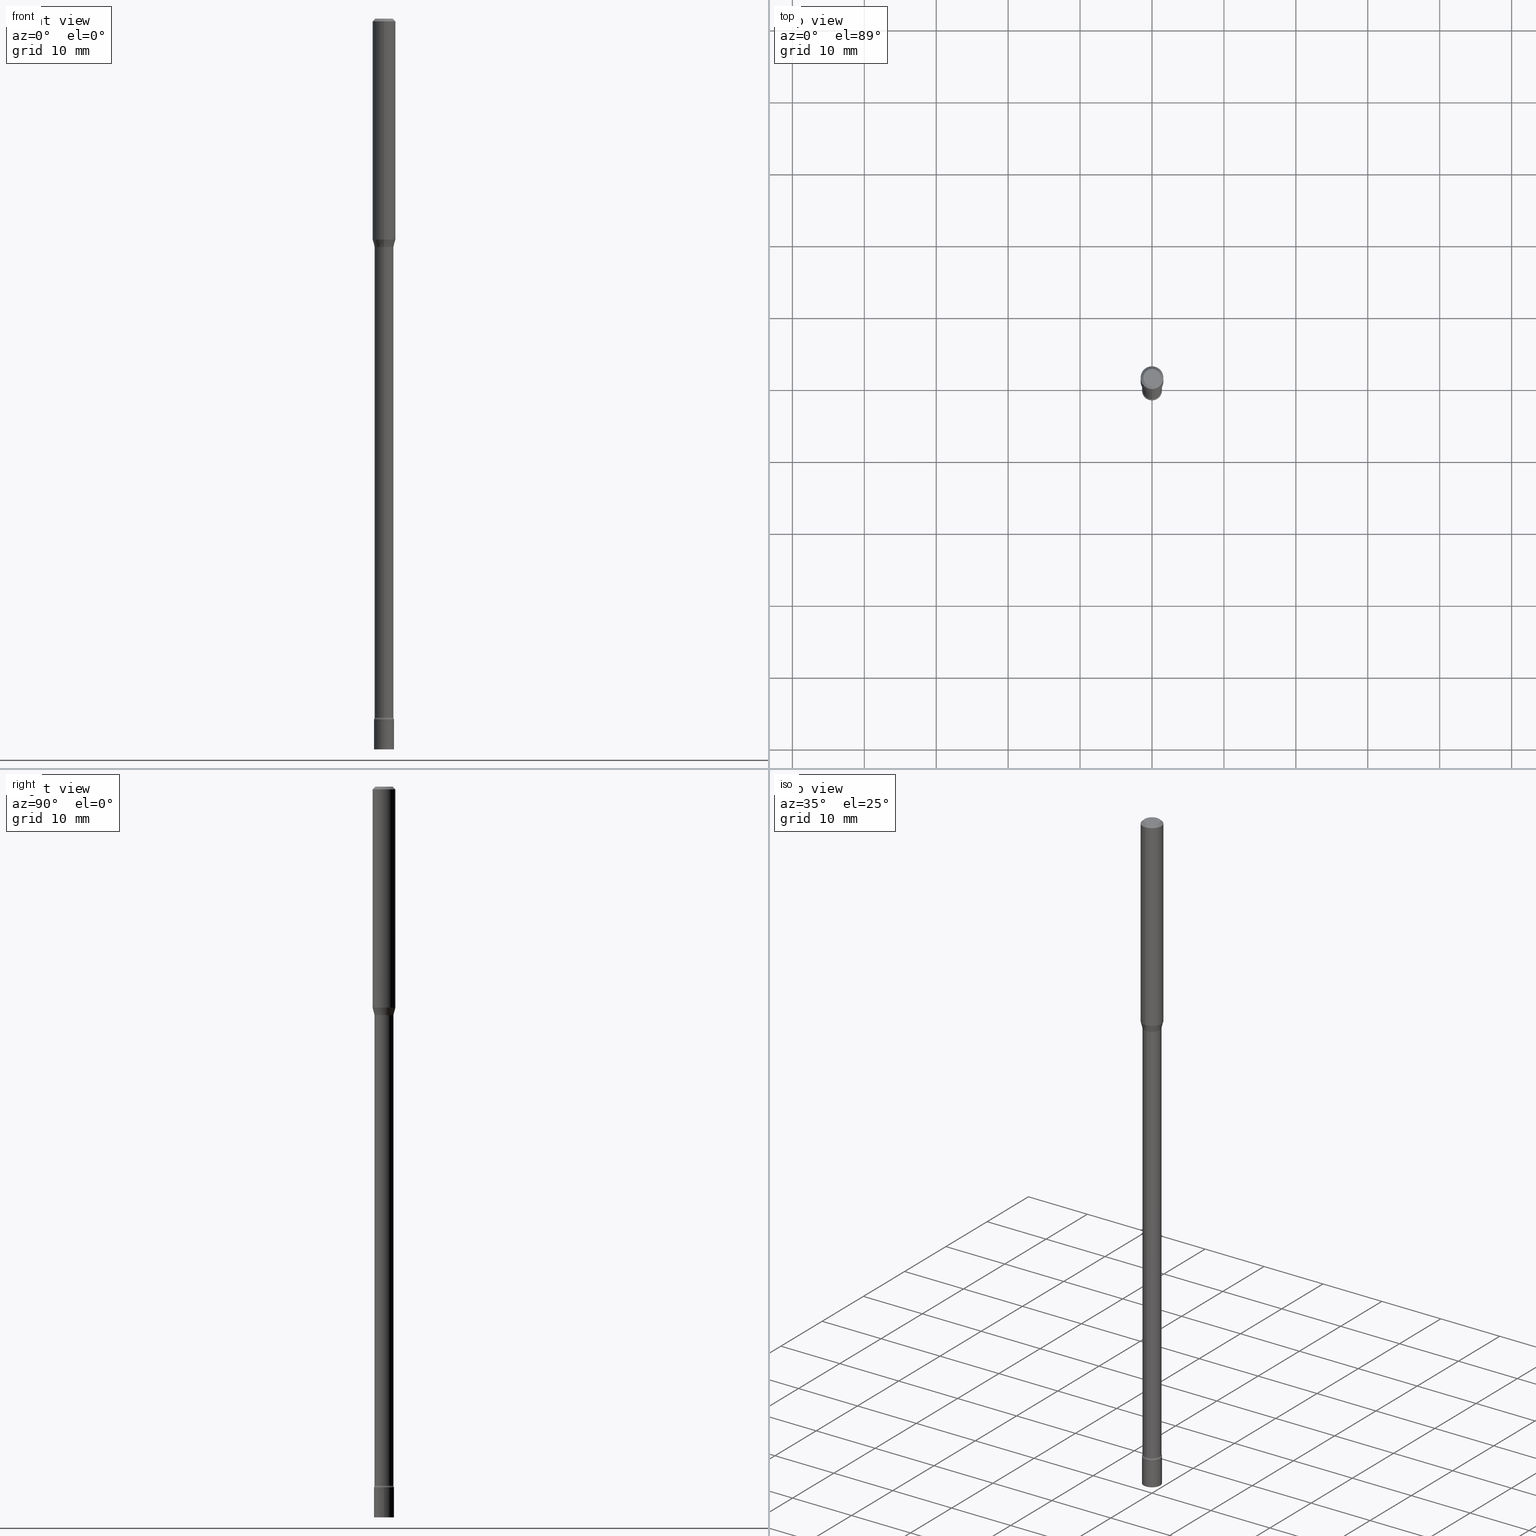
[diagram: canonical four-view strip — front | top / right | iso, engineering-drawing reading convention]
A machine part, canonical four-view strip (front | top / right | iso — engineering-drawing reading convention). The complete STEP part file that produces these views, byte-faithful:
ISO-10303-21;
HEADER;
FILE_DESCRIPTION (( 'STEP AP203' ),
    '1' );
FILE_NAME ('03694.STEP',
    '2024-03-08T22:40:17',
    ( '' ),
    ( '' ),
    'SwSTEP 2.0',
    'SolidWorks 2023',
    '' );
FILE_SCHEMA (( 'CONFIG_CONTROL_DESIGN' ));
ENDSEC;

DATA;
#1 = EDGE_LOOP ( 'NONE', ( #118, #162 ) ) ;
#2 =( GEOMETRIC_REPRESENTATION_CONTEXT ( 3 ) GLOBAL_UNCERTAINTY_ASSIGNED_CONTEXT ( ( #254 ) ) GLOBAL_UNIT_ASSIGNED_CONTEXT ( ( #311, #188, #146 ) ) REPRESENTATION_CONTEXT ( 'NONE', 'WORKASPACE' ) );
#3 = PERSON_AND_ORGANIZATION_ROLE ( 'design_owner' ) ;
#4 = DIRECTION ( 'NONE',  ( -6.982962677686265922E-15, -1.000000000000000000, 3.483106191921935554E-15 ) ) ;
#5 = DIRECTION ( 'NONE',  ( 1.000000000000000000, -6.982962677686266711E-15, 4.876176775795935793E-29 ) ) ;
#6 = VERTEX_POINT ( 'NONE', #67 ) ;
#7 = ADVANCED_FACE ( 'NONE', ( #302 ), #94, .T. ) ;
#8 = PERSON_AND_ORGANIZATION_ROLE ( 'classification_officer' ) ;
#9 = FACE_OUTER_BOUND ( 'NONE', #291, .T. ) ;
#10 = ORIENTED_EDGE ( 'NONE', *, *, #306, .F. ) ;
#11 = EDGE_CURVE ( 'NONE', #6, #441, #249, .T. ) ;
#12 = EDGE_LOOP ( 'NONE', ( #440, #232, #106, #401 ) ) ;
#13 = AXIS2_PLACEMENT_3D ( 'NONE', #468, #39, #348 ) ;
#14 = AXIS2_PLACEMENT_3D ( 'NONE', #368, #429, #425 ) ;
#15 = CC_DESIGN_PERSON_AND_ORGANIZATION_ASSIGNMENT ( #484, #3, ( #497 ) ) ;
#16 = FACE_OUTER_BOUND ( 'NONE', #243, .T. ) ;
#17 = VERTEX_POINT ( 'NONE', #68 ) ;
#18 = ORIENTED_EDGE ( 'NONE', *, *, #325, .F. ) ;
#19 = DIRECTION ( 'NONE',  ( -6.982962677686265133E-15, -1.000000000000000000, 3.491579348581809873E-15 ) ) ;
#20 = DIRECTION ( 'NONE',  ( 1.000000000000000000, -7.105427357601001070E-15, 4.926316708815209941E-29 ) ) ;
#21 = TOROIDAL_SURFACE ( 'NONE', #396, 0.06670000000000031459, 0.01499999999999999424 ) ;
#22 = DIRECTION ( 'NONE',  ( 1.000000000000000000, -7.105427357601001070E-15, 4.926316708815209941E-29 ) ) ;
#23 = EDGE_CURVE ( 'NONE', #457, #90, #149, .T. ) ;
#24 = CARTESIAN_POINT ( 'NONE',  ( 4.739320047520172611E-16, 0.06669999999999561002, -1.251974787463811412 ) ) ;
#25 = CARTESIAN_POINT ( 'NONE',  ( 0.05500000000000000028, -1.434998830264532732E-14, -4.000000000000000000 ) ) ;
#26 = ORIENTED_EDGE ( 'NONE', *, *, #423, .T. ) ;
#27 = CIRCLE ( 'NONE', #443, 0.05500000000000000028 ) ;
#28 = EDGE_LOOP ( 'NONE', ( #448, #491, #82, #54 ) ) ;
#29 = CARTESIAN_POINT ( 'NONE',  ( 3.061579603925495244E-29, -4.371369312853743767E-15, -1.251974787463811190 ) ) ;
#30 = VERTEX_POINT ( 'NONE', #417 ) ;
#31 = DIRECTION ( 'NONE',  ( -2.438088387897960049E-29, 3.491481338843145188E-15, 1.000000000000000000 ) ) ;
#32 = CARTESIAN_POINT ( 'NONE',  ( 9.355156183166180698E-29, -1.335743241939947111E-14, -3.825613307291703347 ) ) ;
#33 = EDGE_CURVE ( 'NONE', #108, #214, #419, .T. ) ;
#34 = PERSON_AND_ORGANIZATION ( #217, #199 ) ;
#35 = ORIENTED_EDGE ( 'NONE', *, *, #33, .F. ) ;
#36 = DIRECTION ( 'NONE',  ( 1.000000000000000000, -6.982962677686279332E-15, 0.000000000000000000 ) ) ;
#37 = AXIS2_PLACEMENT_3D ( 'NONE', #420, #426, #384 ) ;
#38 = ADVANCED_FACE ( 'NONE', ( #450 ), #139, .T. ) ;
#39 = DIRECTION ( 'NONE',  ( -2.445400366350421990E-29, 3.491579348581810268E-15, 1.000000000000000000 ) ) ;
#40 = CARTESIAN_POINT ( 'NONE',  ( -4.364351673553618899E-16, -0.06250000000000419109, -1.209693851278255794 ) ) ;
#41 = CARTESIAN_POINT ( 'NONE',  ( 3.673505943879728028E-16, 0.05170000000000015555, -1.805146523216801116E-16 ) ) ;
#42 = VERTEX_POINT ( 'NONE', #25 ) ;
#43 = CALENDAR_DATE ( 2024, 8, 3 ) ;
#44 = CARTESIAN_POINT ( 'NONE',  ( 4.440892098500625669E-16, 0.06250000000000000000, -2.182237092863631417E-16 ) ) ;
#45 = CARTESIAN_POINT ( 'NONE',  ( 0.000000000000000000, 0.000000000000000000, 0.000000000000000000 ) ) ;
#46 = ORIENTED_EDGE ( 'NONE', *, *, #191, .F. ) ;
#47 = ADVANCED_FACE ( 'NONE', ( #252 ), #178, .T. ) ;
#48 = VECTOR ( 'NONE', #495, 39.37007874015748143 ) ;
#49 = AXIS2_PLACEMENT_3D ( 'NONE', #129, #328, #492 ) ;
#50 = CC_DESIGN_SECURITY_CLASSIFICATION ( #451, ( #135 ) ) ;
#51 = COORDINATED_UNIVERSAL_TIME_OFFSET ( 5, 0, .BEHIND. ) ;
#52 = DIRECTION ( 'NONE',  ( -2.445400366350421990E-29, 3.491579348581810268E-15, 1.000000000000000000 ) ) ;
#53 = CARTESIAN_POINT ( 'NONE',  ( 0.05500000000000000028, -1.377389388173620747E-14, -3.834999999999999964 ) ) ;
#54 = ORIENTED_EDGE ( 'NONE', *, *, #174, .F. ) ;
#55 = ADVANCED_FACE ( 'NONE', ( #506 ), #345, .T. ) ;
#56 = CARTESIAN_POINT ( 'NONE',  ( 3.709822678791017525E-16, 0.05221111260565961670, -1.248092501787273489 ) ) ;
#57 = VERTEX_POINT ( 'NONE', #154 ) ;
#58 = CIRCLE ( 'NONE', #498, 0.05221111260566396739 ) ;
#59 = EDGE_LOOP ( 'NONE', ( #323, #18 ) ) ;
#60 = DIRECTION ( 'NONE',  ( -6.982962677686265922E-15, -1.000000000000000000, 3.491579348581810268E-15 ) ) ;
#61 = DIRECTION ( 'NONE',  ( -2.445400366350421990E-29, 3.491579348581810268E-15, 1.000000000000000000 ) ) ;
#62 = ADVANCED_FACE ( 'NONE', ( #439 ), #76, .T. ) ;
#63 = AXIS2_PLACEMENT_3D ( 'NONE', #161, #237, #226 ) ;
#64 = VECTOR ( 'NONE', #253, 39.37007874015748143 ) ;
#65 = CARTESIAN_POINT ( 'NONE',  ( 4.440892098500922971E-16, 0.06249999999999580891, -1.209693851278256460 ) ) ;
#66 = PRODUCT_RELATED_PRODUCT_CATEGORY ( 'detail', '', ( #497 ) ) ;
#67 = CARTESIAN_POINT ( 'NONE',  ( -0.05500000000000000028, -1.328707964024996617E-14, -4.000000000000000000 ) ) ;
#68 = CARTESIAN_POINT ( 'NONE',  ( 4.440892098500922971E-16, 0.06249999999999995143, -0.01500000000000024751 ) ) ;
#69 = EDGE_LOOP ( 'NONE', ( #201, #361, #499, #392 ) ) ;
#70 = VECTOR ( 'NONE', #358, 39.37007874015748854 ) ;
#71 = CARTESIAN_POINT ( 'NONE',  ( 3.673505943880662335E-16, 0.05169999999999561058, -1.251974787463811412 ) ) ;
#72 = DIRECTION ( 'NONE',  ( -6.982962677686266711E-15, -1.000000000000000000, 5.232311393739398461E-15 ) ) ;
#73 = CARTESIAN_POINT ( 'NONE',  ( -4.657636106015826048E-16, -0.06670000000001366502, -3.825613307291703347 ) ) ;
#74 = EDGE_CURVE ( 'NONE', #483, #17, #183, .T. ) ;
#75 = CARTESIAN_POINT ( 'NONE',  ( 9.781875224740546387E-29, -1.396592535537258233E-14, -4.000000000000000000 ) ) ;
#76 = PLANE ( 'NONE',  #109 ) ;
#77 = DIRECTION ( 'NONE',  ( -2.445400366350421990E-29, 3.491579348581810268E-15, 1.000000000000000000 ) ) ;
#78 = LENGTH_MEASURE_WITH_UNIT ( LENGTH_MEASURE( 0.02539999999999999897 ), #185 );
#79 = SECURITY_CLASSIFICATION_LEVEL ( 'unclassified' ) ;
#80 = ORIENTED_EDGE ( 'NONE', *, *, #23, .T. ) ;
#81 = DIRECTION ( 'NONE',  ( 1.000000000000000000, -6.982962677686266711E-15, 4.876176775795935793E-29 ) ) ;
#82 = ORIENTED_EDGE ( 'NONE', *, *, #134, .T. ) ;
#83 = PERSON_AND_ORGANIZATION ( #217, #199 ) ;
#84 = CARTESIAN_POINT ( 'NONE',  ( 9.378372871719999252E-29, -1.338983093446346249E-14, -3.834999999999999964 ) ) ;
#85 = DIRECTION ( 'NONE',  ( -6.982962677686266711E-15, -1.000000000000000000, 5.232311393739398461E-15 ) ) ;
#86 = ORIENTED_EDGE ( 'NONE', *, *, #208, .F. ) ;
#87 = EDGE_CURVE ( 'NONE', #17, #214, #395, .T. ) ;
#88 = ORIENTED_EDGE ( 'NONE', *, *, #333, .F. ) ;
#89 = AXIS2_PLACEMENT_3D ( 'NONE', #117, #182, #81 ) ;
#90 = VERTEX_POINT ( 'NONE', #427 ) ;
#91 = CARTESIAN_POINT ( 'NONE',  ( 3.052085861109812345E-29, -4.357814004360249360E-15, -1.248092501787273045 ) ) ;
#92 = EDGE_LOOP ( 'NONE', ( #350, #181 ) ) ;
#93 = DIRECTION ( 'NONE',  ( -1.807323732225325406E-15, -0.2588190451025175198, 0.9659258262890690894 ) ) ;
#94 = CYLINDRICAL_SURFACE ( 'NONE', #504, 0.05170000000000015555 ) ;
#95 = AXIS2_PLACEMENT_3D ( 'NONE', #132, #380, #261 ) ;
#96 = DIRECTION ( 'NONE',  ( -2.445400366350421990E-29, 3.491579348581810268E-15, 1.000000000000000000 ) ) ;
#97 = EDGE_CURVE ( 'NONE', #476, #57, #211, .T. ) ;
#98 = DIRECTION ( 'NONE',  ( 7.105427357600994759E-15, 1.000000000000000000, 0.000000000000000000 ) ) ;
#99 = TOROIDAL_SURFACE ( 'NONE', #386, 0.06669999999999998153, 0.01500000000000001853 ) ;
#100 = AXIS2_PLACEMENT_3D ( 'NONE', #473, #115, #270 ) ;
#101 = CARTESIAN_POINT ( 'NONE',  ( -3.840629472726507651E-16, -0.05500000000001337847, -3.834999999999999964 ) ) ;
#102 = EDGE_CURVE ( 'NONE', #214, #17, #464, .T. ) ;
#103 = DIRECTION ( 'NONE',  ( -6.982962677686265922E-15, -1.000000000000000000, 3.491579348581810268E-15 ) ) ;
#104 = EDGE_CURVE ( 'NONE', #487, #130, #442, .T. ) ;
#105 = ORIENTED_EDGE ( 'NONE', *, *, #306, .T. ) ;
#106 = ORIENTED_EDGE ( 'NONE', *, *, #438, .T. ) ;
#107 = DIRECTION ( 'NONE',  ( -1.000000000000000000, 6.982962677686265922E-15, -4.883557194083112340E-29 ) ) ;
#108 = VERTEX_POINT ( 'NONE', #40 ) ;
#109 = AXIS2_PLACEMENT_3D ( 'NONE', #84, #31, #268 ) ;
#110 = VECTOR ( 'NONE', #447, 39.37007874015748143 ) ;
#111 = CARTESIAN_POINT ( 'NONE',  ( 3.061665288873016119E-29, -4.371246607132010195E-15, -1.251974787463811190 ) ) ;
#112 = DIRECTION ( 'NONE',  ( -6.982962677686265133E-15, -1.000000000000000000, 3.491579348581810268E-15 ) ) ;
#113 = DIRECTION ( 'NONE',  ( 1.000000000000000000, 0.000000000000000000, 0.000000000000000000 ) ) ;
#114 = FACE_OUTER_BOUND ( 'NONE', #12, .T. ) ;
#115 = DIRECTION ( 'NONE',  ( 2.445400366350421710E-29, -3.491579348581810268E-15, -1.000000000000000000 ) ) ;
#116 = APPROVAL_DATE_TIME ( #156, #299 ) ;
#117 = CARTESIAN_POINT ( 'NONE',  ( 0.000000000000000000, 0.000000000000000000, 0.000000000000000000 ) ) ;
#118 = ORIENTED_EDGE ( 'NONE', *, *, #97, .F. ) ;
#119 = CIRCLE ( 'NONE', #150, 0.05170000000000031515 ) ;
#120 = LOCAL_TIME ( 17, 40, 17.00000000000000000, #478 ) ;
#121 = DATE_AND_TIME ( #357, #415 ) ;
#122 = DIRECTION ( 'NONE',  ( -6.982962677686266711E-15, -1.000000000000000000, 5.232311393739398461E-15 ) ) ;
#123 = ORIENTED_EDGE ( 'NONE', *, *, #399, .T. ) ;
#124 = ADVANCED_FACE ( 'NONE', ( #346 ), #218, .F. ) ;
#125 = EDGE_LOOP ( 'NONE', ( #46, #26, #445, #356 ) ) ;
#126 = EDGE_CURVE ( 'NONE', #128, #487, #282, .T. ) ;
#127 = CYLINDRICAL_SURFACE ( 'NONE', #160, 0.05170000000000015555 ) ;
#128 = VERTEX_POINT ( 'NONE', #192 ) ;
#129 = CARTESIAN_POINT ( 'NONE',  ( 9.781875224740546387E-29, -1.396592535537258233E-14, -4.000000000000000000 ) ) ;
#130 = VERTEX_POINT ( 'NONE', #71 ) ;
#131 = ORIENTED_EDGE ( 'NONE', *, *, #438, .F. ) ;
#132 = CARTESIAN_POINT ( 'NONE',  ( 7.069470390571959671E-46, -1.009389593654559798E-31, -2.890925546528242886E-17 ) ) ;
#133 = AXIS2_PLACEMENT_3D ( 'NONE', #469, #152, #113 ) ;
#134 = EDGE_CURVE ( 'NONE', #57, #476, #412, .T. ) ;
#135 = PRODUCT_DEFINITION_FORMATION_WITH_SPECIFIED_SOURCE ( 'ANY', '', #497, .NOT_KNOWN. ) ;
#136 = ADVANCED_FACE ( 'NONE', ( #312 ), #99, .F. ) ;
#137 = DIRECTION ( 'NONE',  ( -2.445400366350421990E-29, 3.491579348581810268E-15, 1.000000000000000000 ) ) ;
#138 = VECTOR ( 'NONE', #292, 39.37007874015748143 ) ;
#139 = CYLINDRICAL_SURFACE ( 'NONE', #342, 0.06250000000000000000 ) ;
#140 = CONICAL_SURFACE ( 'NONE', #163, 0.05221111260566396739, 0.2617993877991495744 ) ;
#141 = APPROVAL_PERSON_ORGANIZATION ( #231, #205, #314 ) ;
#142 = FACE_OUTER_BOUND ( 'NONE', #262, .T. ) ;
#143 = ORIENTED_EDGE ( 'NONE', *, *, #416, .T. ) ;
#144 = ORIENTED_EDGE ( 'NONE', *, *, #289, .T. ) ;
#145 = DIRECTION ( 'NONE',  ( -2.445400366350421990E-29, 3.491579348581810268E-15, 1.000000000000000000 ) ) ;
#146 =( NAMED_UNIT ( * ) SI_UNIT ( $, .STERADIAN. ) SOLID_ANGLE_UNIT ( ) );
#147 = ADVANCED_FACE ( 'NONE', ( #512 ), #454, .F. ) ;
#148 = DIRECTION ( 'NONE',  ( -2.445400366350421990E-29, 3.491579348581810268E-15, 1.000000000000000000 ) ) ;
#149 = CIRCLE ( 'NONE', #95, 0.04749999999999999362 ) ;
#150 = AXIS2_PLACEMENT_3D ( 'NONE', #32, #389, #339 ) ;
#151 = LINE ( 'NONE', #213, #276 ) ;
#152 = DIRECTION ( 'NONE',  ( 0.000000000000000000, 0.000000000000000000, 1.000000000000000000 ) ) ;
#153 = COORDINATED_UNIVERSAL_TIME_OFFSET ( 5, 0, .BEHIND. ) ;
#154 = CARTESIAN_POINT ( 'NONE',  ( 3.907985046681487814E-16, 0.05499999999998660821, -3.834999999999999964 ) ) ;
#155 = DIRECTION ( 'NONE',  ( -2.445400366350421990E-29, 3.491579348581810268E-15, 1.000000000000000000 ) ) ;
#156 = DATE_AND_TIME ( #274, #164 ) ;
#157 = DIRECTION ( 'NONE',  ( -6.982962677686266711E-15, -1.000000000000000000, 5.284038672464726492E-15 ) ) ;
#158 = APPROVAL ( #388, 'UNSPECIFIED' ) ;
#159 = DATE_AND_TIME ( #353, #336 ) ;
#160 = AXIS2_PLACEMENT_3D ( 'NONE', #444, #52, #245 ) ;
#161 = CARTESIAN_POINT ( 'NONE',  ( -4.657636106016431499E-16, -0.06670000000000435303, -1.251974787463810745 ) ) ;
#162 = ORIENTED_EDGE ( 'NONE', *, *, #134, .F. ) ;
#163 = AXIS2_PLACEMENT_3D ( 'NONE', #91, #290, #122 ) ;
#164 = LOCAL_TIME ( 17, 40, 17.00000000000000000, #165 ) ;
#165 = COORDINATED_UNIVERSAL_TIME_OFFSET ( 5, 0, .BEHIND. ) ;
#166 = EDGE_LOOP ( 'NONE', ( #80, #172 ) ) ;
#167 = SHAPE_DEFINITION_REPRESENTATION ( #409, #421 ) ;
#168 = FACE_OUTER_BOUND ( 'NONE', #327, .T. ) ;
#169 = ORIENTED_EDGE ( 'NONE', *, *, #485, .F. ) ;
#170 = ORIENTED_EDGE ( 'NONE', *, *, #485, .T. ) ;
#171 = LINE ( 'NONE', #176, #449 ) ;
#172 = ORIENTED_EDGE ( 'NONE', *, *, #244, .T. ) ;
#173 = DIRECTION ( 'NONE',  ( -2.445400366350421990E-29, 3.491579348581810268E-15, 1.000000000000000000 ) ) ;
#174 = EDGE_CURVE ( 'NONE', #30, #476, #297, .T. ) ;
#175 = AXIS2_PLACEMENT_3D ( 'NONE', #374, #20, #295 ) ;
#176 = CARTESIAN_POINT ( 'NONE',  ( -3.610191704363809896E-16, -0.05170000000000015555, 1.805146523216801116E-16 ) ) ;
#177 = AXIS2_PLACEMENT_3D ( 'NONE', #482, #148, #304 ) ;
#178 = CYLINDRICAL_SURFACE ( 'NONE', #331, 0.06250000000000000000 ) ;
#179 = AXIS2_PLACEMENT_3D ( 'NONE', #207, #397, #402 ) ;
#180 = CARTESIAN_POINT ( 'NONE',  ( 2.958185787087700201E-29, -4.223742069229554954E-15, -1.209693851278256238 ) ) ;
#181 = ORIENTED_EDGE ( 'NONE', *, *, #503, .T. ) ;
#182 = DIRECTION ( 'NONE',  ( -2.445468806185136597E-29, 3.491481338843145583E-15, 1.000000000000000000 ) ) ;
#183 = LINE ( 'NONE', #44, #404 ) ;
#184 = CARTESIAN_POINT ( 'NONE',  ( 3.052085861109812345E-29, -4.357814004360249360E-15, -1.248092501787273045 ) ) ;
#185 =( LENGTH_UNIT ( ) NAMED_UNIT ( * ) SI_UNIT ( $, .METRE. ) );
#186 = AXIS2_PLACEMENT_3D ( 'NONE', #180, #61, #216 ) ;
#187 = FACE_OUTER_BOUND ( 'NONE', #1, .T. ) ;
#188 =( NAMED_UNIT ( * ) PLANE_ANGLE_UNIT ( ) SI_UNIT ( $, .RADIAN. ) );
#189 = PERSON_AND_ORGANIZATION ( #217, #199 ) ;
#190 = DIRECTION ( 'NONE',  ( 2.438088387897960049E-29, -3.491481338843145188E-15, -1.000000000000000000 ) ) ;
#191 = EDGE_CURVE ( 'NONE', #223, #128, #58, .T. ) ;
#192 = CARTESIAN_POINT ( 'NONE',  ( -3.645882506857959257E-16, -0.05221111260566832502, -1.248092501787272823 ) ) ;
#193 = APPLICATION_PROTOCOL_DEFINITION ( 'international standard', 'config_control_design', 1994, #373 ) ;
#194 = EDGE_CURVE ( 'NONE', #108, #483, #265, .T. ) ;
#195 = CARTESIAN_POINT ( 'NONE',  ( 9.378110404953868017E-29, -1.339020680181124130E-14, -3.834999999999999964 ) ) ;
#196 = ORIENTED_EDGE ( 'NONE', *, *, #515, .T. ) ;
#197 = PERSON_AND_ORGANIZATION_ROLE ( 'creator' ) ;
#198 = DIRECTION ( 'NONE',  ( -2.445400366350421990E-29, 3.491579348581810268E-15, 1.000000000000000000 ) ) ;
#199 = ORGANIZATION ( 'UNSPECIFIED', 'UNSPECIFIED', '' ) ;
#200 = CARTESIAN_POINT ( 'NONE',  ( 3.668100549525640377E-31, -5.237369022872726347E-17, -0.01500000000000003067 ) ) ;
#201 = ORIENTED_EDGE ( 'NONE', *, *, #423, .F. ) ;
#202 = LOCAL_TIME ( 17, 40, 17.00000000000000000, #470 ) ;
#203 = APPROVAL_DATE_TIME ( #481, #158 ) ;
#204 = CARTESIAN_POINT ( 'NONE',  ( 3.790745495281081238E-16, 0.05169999999998695778, -3.825613307291703347 ) ) ;
#205 = APPROVAL ( #238, 'UNSPECIFIED' ) ;
#206 = DIMENSIONAL_EXPONENTS ( 1.000000000000000000, 0.000000000000000000, 0.000000000000000000, 0.000000000000000000, 0.000000000000000000, 0.000000000000000000, 0.000000000000000000 ) ;
#207 = CARTESIAN_POINT ( 'NONE',  ( 9.355156183166180698E-29, -1.335743241939947111E-14, -3.825613307291703347 ) ) ;
#208 = EDGE_CURVE ( 'NONE', #398, #441, #27, .T. ) ;
#209 = FACE_OUTER_BOUND ( 'NONE', #28, .T. ) ;
#210 = ORIENTED_EDGE ( 'NONE', *, *, #104, .F. ) ;
#211 = CIRCLE ( 'NONE', #177, 0.05500000000000000028 ) ;
#212 = AXIS2_PLACEMENT_3D ( 'NONE', #24, #22, #98 ) ;
#213 = CARTESIAN_POINT ( 'NONE',  ( -3.645882506857959257E-16, -0.05221111260566832502, -1.248092501787272823 ) ) ;
#214 = VERTEX_POINT ( 'NONE', #310 ) ;
#215 = ORIENTED_EDGE ( 'NONE', *, *, #97, .T. ) ;
#216 = DIRECTION ( 'NONE',  ( -6.982962677686265922E-15, -1.000000000000000000, 4.370956789862821150E-15 ) ) ;
#217 = PERSON ( 'UNSPECIFIED', 'UNSPECIFIED', 'UNSPECIFIED', ('UNSPECIFIED'), ('UNSPECIFIED'), ('UNSPECIFIED') ) ;
#218 = TOROIDAL_SURFACE ( 'NONE', #488, 0.06669999999999998153, 0.01500000000000001853 ) ;
#219 = CC_DESIGN_PERSON_AND_ORGANIZATION_ASSIGNMENT ( #271, #437, ( #135 ) ) ;
#220 = AXIS2_PLACEMENT_3D ( 'NONE', #260, #456, #453 ) ;
#221 = CARTESIAN_POINT ( 'NONE',  ( -4.364351673553916201E-16, -0.06250000000000000000, 2.182237092863631417E-16 ) ) ;
#222 = VECTOR ( 'NONE', #301, 39.37007874015748143 ) ;
#223 = VERTEX_POINT ( 'NONE', #475 ) ;
#224 = ADVANCED_FACE ( 'NONE', ( #187 ), #349, .F. ) ;
#225 = CARTESIAN_POINT ( 'NONE',  ( 9.378372871719999252E-29, -1.338983093446346249E-14, -3.834999999999999964 ) ) ;
#226 = DIRECTION ( 'NONE',  ( -6.982962677686259611E-15, -1.000000000000000000, 0.000000000000000000 ) ) ;
#227 = DIRECTION ( 'NONE',  ( 1.000000000000000000, -6.982962677686279332E-15, 0.000000000000000000 ) ) ;
#228 = DATE_TIME_ROLE ( 'creation_date' ) ;
#229 = DIRECTION ( 'NONE',  ( -6.982962677686265133E-15, -1.000000000000000000, 3.491579348581810268E-15 ) ) ;
#230 = EDGE_CURVE ( 'NONE', #130, #487, #477, .T. ) ;
#231 = PERSON_AND_ORGANIZATION ( #217, #199 ) ;
#232 = ORIENTED_EDGE ( 'NONE', *, *, #325, .T. ) ;
#233 = AXIS2_PLACEMENT_3D ( 'NONE', #516, #155, #269 ) ;
#234 = CONICAL_SURFACE ( 'NONE', #455, 0.06250000000000000000, 0.7853981633974483900 ) ;
#235 = DIRECTION ( 'NONE',  ( -2.445400366350422270E-29, 3.491579348581810268E-15, 1.000000000000000000 ) ) ;
#236 = DATE_TIME_ROLE ( 'classification_date' ) ;
#237 = DIRECTION ( 'NONE',  ( -1.000000000000000000, 6.982962677686265922E-15, -4.883557194083112340E-29 ) ) ;
#238 = APPROVAL_STATUS ( 'not_yet_approved' ) ;
#239 = EDGE_LOOP ( 'NONE', ( #281, #10, #462, #215 ) ) ;
#240 = MANIFOLD_SOLID_BREP ( 'Body-Move/Copy2[2]', #370 ) ;
#241 = CIRCLE ( 'NONE', #179, 0.05170000000000031515 ) ;
#242 = ADVANCED_FACE ( 'NONE', ( #114 ), #382, .T. ) ;
#243 = EDGE_LOOP ( 'NONE', ( #286, #123, #422, #458 ) ) ;
#244 = EDGE_CURVE ( 'NONE', #90, #457, #489, .T. ) ;
#245 = DIRECTION ( 'NONE',  ( -6.982962677686265133E-15, -1.000000000000000000, 3.491579348581809873E-15 ) ) ;
#246 = ORIENTED_EDGE ( 'NONE', *, *, #11, .T. ) ;
#247 = EDGE_CURVE ( 'NONE', #394, #130, #391, .T. ) ;
#248 = CARTESIAN_POINT ( 'NONE',  ( 3.052085861109812345E-29, -4.357814004360249360E-15, -1.248092501787273045 ) ) ;
#249 = LINE ( 'NONE', #366, #48 ) ;
#250 = CIRCLE ( 'NONE', #387, 0.05500000000000000028 ) ;
#251 = APPROVAL_PERSON_ORGANIZATION ( #34, #158, #514 ) ;
#252 = FACE_OUTER_BOUND ( 'NONE', #259, .T. ) ;
#253 = DIRECTION ( 'NONE',  ( -2.445468806185136877E-29, 3.491481338843145188E-15, 1.000000000000000000 ) ) ;
#254 = UNCERTAINTY_MEASURE_WITH_UNIT (LENGTH_MEASURE( 1.000000000000000082E-05 ), #311, 'distance_accuracy_value', 'NONE');
#255 = EDGE_CURVE ( 'NONE', #394, #30, #119, .T. ) ;
#256 = AXIS2_PLACEMENT_3D ( 'NONE', #195, #145, #316 ) ;
#257 = AXIS2_PLACEMENT_3D ( 'NONE', #45, #321, #5 ) ;
#258 = CARTESIAN_POINT ( 'NONE',  ( -3.610191704363492873E-16, -0.05170000000000436052, -1.251974787463810745 ) ) ;
#259 = EDGE_LOOP ( 'NONE', ( #266, #313, #493, #463 ) ) ;
#260 = CARTESIAN_POINT ( 'NONE',  ( 3.668100549525640377E-31, -5.237369022872726347E-17, -0.01500000000000003067 ) ) ;
#261 = DIRECTION ( 'NONE',  ( -6.982962677686266711E-15, -1.000000000000000000, 3.491579348581810662E-15 ) ) ;
#262 = EDGE_LOOP ( 'NONE', ( #88, #480, #170, #317 ) ) ;
#263 = DIRECTION ( 'NONE',  ( -2.445400366350421990E-29, 3.491579348581810268E-15, 1.000000000000000000 ) ) ;
#264 = CLOSED_SHELL ( 'NONE', ( #383, #62, #242, #55 ) ) ;
#265 = CIRCLE ( 'NONE', #37, 0.06250000000000000000 ) ;
#266 = ORIENTED_EDGE ( 'NONE', *, *, #74, .F. ) ;
#267 = CARTESIAN_POINT ( 'NONE',  ( 3.052085861109812345E-29, -4.357814004360249360E-15, -1.248092501787273045 ) ) ;
#268 = DIRECTION ( 'NONE',  ( 1.000000000000000000, -6.982962677686265922E-15, 4.876176775795935793E-29 ) ) ;
#269 = DIRECTION ( 'NONE',  ( -6.982962677686265922E-15, -1.000000000000000000, 3.491579348581809873E-15 ) ) ;
#270 = DIRECTION ( 'NONE',  ( 6.982962677686265922E-15, 1.000000000000000000, -3.491579348581810268E-15 ) ) ;
#271 = PERSON_AND_ORGANIZATION ( #217, #199 ) ;
#272 = DIRECTION ( 'NONE',  ( -2.445400366350421990E-29, 3.491579348581810268E-15, 1.000000000000000000 ) ) ;
#273 = DIRECTION ( 'NONE',  ( -2.445468806185136597E-29, 3.491481338843145583E-15, 1.000000000000000000 ) ) ;
#274 = CALENDAR_DATE ( 2024, 8, 3 ) ;
#275 = AXIS2_PLACEMENT_3D ( 'NONE', #494, #293, #424 ) ;
#276 = VECTOR ( 'NONE', #93, 39.37007874015748854 ) ;
#277 = APPROVAL_PERSON_ORGANIZATION ( #517, #299, #343 ) ;
#278 = DIRECTION ( 'NONE',  ( -6.982962677686258822E-15, -1.000000000000000000, 0.000000000000000000 ) ) ;
#279 = APPROVAL_DATE_TIME ( #121, #205 ) ;
#280 = EDGE_LOOP ( 'NONE', ( #407, #300, #143, #433 ) ) ;
#281 = ORIENTED_EDGE ( 'NONE', *, *, #446, .F. ) ;
#282 = CIRCLE ( 'NONE', #63, 0.01500000000000002720 ) ;
#283 = EDGE_CURVE ( 'NONE', #128, #223, #432, .T. ) ;
#284 = CIRCLE ( 'NONE', #212, 0.01500000000000002720 ) ;
#285 = LINE ( 'NONE', #287, #110 ) ;
#286 = ORIENTED_EDGE ( 'NONE', *, *, #283, .T. ) ;
#287 = CARTESIAN_POINT ( 'NONE',  ( -4.287811248607203282E-16, -0.06250000000000005551, -0.01499999999999981209 ) ) ;
#288 = ORIENTED_EDGE ( 'NONE', *, *, #102, .F. ) ;
#289 = EDGE_CURVE ( 'NONE', #128, #108, #151, .T. ) ;
#290 = DIRECTION ( 'NONE',  ( -2.445400366350421990E-29, 3.491579348581810268E-15, 1.000000000000000000 ) ) ;
#291 = EDGE_LOOP ( 'NONE', ( #508, #403, #144, #338 ) ) ;
#292 = DIRECTION ( 'NONE',  ( -2.445400366350422270E-29, 3.491579348581810268E-15, 1.000000000000000000 ) ) ;
#293 = DIRECTION ( 'NONE',  ( -2.445400366350421990E-29, 3.491579348581810268E-15, 1.000000000000000000 ) ) ;
#294 = ADVANCED_FACE ( 'NONE', ( #9 ), #140, .T. ) ;
#295 = DIRECTION ( 'NONE',  ( 7.105427357601001859E-15, 1.000000000000000000, 0.000000000000000000 ) ) ;
#296 = LINE ( 'NONE', #501, #64 ) ;
#297 = CIRCLE ( 'NONE', #363, 0.01500000000000000291 ) ;
#298 = ORIENTED_EDGE ( 'NONE', *, *, #244, .F. ) ;
#299 = APPROVAL ( #390, 'UNSPECIFIED' ) ;
#300 = ORIENTED_EDGE ( 'NONE', *, *, #255, .T. ) ;
#301 = DIRECTION ( 'NONE',  ( 4.937700262164548042E-15, 0.7071067811865451302, -0.7071067811865499042 ) ) ;
#302 = FACE_OUTER_BOUND ( 'NONE', #332, .T. ) ;
#303 = CARTESIAN_POINT ( 'NONE',  ( 3.840629472728384646E-16, 0.05499999999998661515, -3.834999999999999964 ) ) ;
#304 = DIRECTION ( 'NONE',  ( -6.982962677686266711E-15, -1.000000000000000000, 0.000000000000000000 ) ) ;
#305 = CC_DESIGN_APPROVAL ( #205, ( #431 ) ) ;
#306 = EDGE_CURVE ( 'NONE', #30, #394, #241, .T. ) ;
#307 = DIRECTION ( 'NONE',  ( -2.445400366350421990E-29, 3.491579348581810268E-15, 1.000000000000000000 ) ) ;
#308 = PLANE ( 'NONE',  #100 ) ;
#309 = PERSON_AND_ORGANIZATION ( #217, #199 ) ;
#310 = CARTESIAN_POINT ( 'NONE',  ( -4.364351673553912750E-16, -0.06250000000000005551, -0.01499999999999981209 ) ) ;
#311 =( CONVERSION_BASED_UNIT ( 'INCH', #78 ) LENGTH_UNIT ( ) NAMED_UNIT ( #206 ) );
#312 = FACE_OUTER_BOUND ( 'NONE', #125, .T. ) ;
#313 = ORIENTED_EDGE ( 'NONE', *, *, #496, .T. ) ;
#314 = APPROVAL_ROLE ( '' ) ;
#315 = AXIS2_PLACEMENT_3D ( 'NONE', #29, #518, #157 ) ;
#316 = DIRECTION ( 'NONE',  ( -6.982962677686266711E-15, -1.000000000000000000, 0.000000000000000000 ) ) ;
#317 = ORIENTED_EDGE ( 'NONE', *, *, #87, .T. ) ;
#318 = ADVANCED_FACE ( 'NONE', ( #486 ), #234, .T. ) ;
#319 = DATE_AND_TIME ( #393, #120 ) ;
#320 = DIRECTION ( 'NONE',  ( -2.445400366350422270E-29, 3.491579348581810268E-15, 1.000000000000000000 ) ) ;
#321 = DIRECTION ( 'NONE',  ( -2.445468806185136597E-29, 3.491481338843145583E-15, 1.000000000000000000 ) ) ;
#322 = DIRECTION ( 'NONE',  ( 2.445400366350421990E-29, -3.491579348581810268E-15, -1.000000000000000000 ) ) ;
#323 = ORIENTED_EDGE ( 'NONE', *, *, #515, .F. ) ;
#324 = APPLICATION_CONTEXT ( 'configuration controlled 3d designs of mechanical parts and assemblies' ) ;
#325 = EDGE_CURVE ( 'NONE', #6, #42, #335, .T. ) ;
#326 = CONICAL_SURFACE ( 'NONE', #379, 0.05221111260566396739, 0.2617993877991495744 ) ;
#327 = EDGE_LOOP ( 'NONE', ( #196, #246, #86, #131 ) ) ;
#328 = DIRECTION ( 'NONE',  ( -2.445468806185136597E-29, 3.491481338843145583E-15, 1.000000000000000000 ) ) ;
#329 = ORIENTED_EDGE ( 'NONE', *, *, #102, .T. ) ;
#330 = ORIENTED_EDGE ( 'NONE', *, *, #74, .T. ) ;
#331 = AXIS2_PLACEMENT_3D ( 'NONE', #408, #337, #60 ) ;
#332 = EDGE_LOOP ( 'NONE', ( #105, #365, #210, #347 ) ) ;
#333 = EDGE_CURVE ( 'NONE', #90, #214, #285, .T. ) ;
#334 = CC_DESIGN_DATE_AND_TIME_ASSIGNMENT ( #319, #236, ( #451 ) ) ;
#335 = CIRCLE ( 'NONE', #49, 0.05500000000000000028 ) ;
#336 = LOCAL_TIME ( 17, 40, 17.00000000000000000, #51 ) ;
#337 = DIRECTION ( 'NONE',  ( -2.445400366350421990E-29, 3.491579348581810268E-15, 1.000000000000000000 ) ) ;
#338 = ORIENTED_EDGE ( 'NONE', *, *, #496, .F. ) ;
#339 = DIRECTION ( 'NONE',  ( -6.982962677686266711E-15, -1.000000000000000000, 0.000000000000000000 ) ) ;
#340 = DIRECTION ( 'NONE',  ( -6.982962677686266711E-15, -1.000000000000000000, 5.232311393739398461E-15 ) ) ;
#341 = APPLICATION_PROTOCOL_DEFINITION ( 'international standard', 'config_control_design', 1994, #324 ) ;
#342 = AXIS2_PLACEMENT_3D ( 'NONE', #377, #96, #103 ) ;
#343 = APPROVAL_ROLE ( '' ) ;
#344 = CC_DESIGN_DATE_AND_TIME_ASSIGNMENT ( #159, #228, ( #431 ) ) ;
#345 = PLANE ( 'NONE',  #511 ) ;
#346 = FACE_OUTER_BOUND ( 'NONE', #69, .T. ) ;
#347 = ORIENTED_EDGE ( 'NONE', *, *, #416, .F. ) ;
#348 = DIRECTION ( 'NONE',  ( -6.982962677686265922E-15, -1.000000000000000000, 3.483106191921935554E-15 ) ) ;
#349 = PLANE ( 'NONE',  #513 ) ;
#350 = ORIENTED_EDGE ( 'NONE', *, *, #208, .T. ) ;
#351 = CARTESIAN_POINT ( 'NONE',  ( 3.061665288873016119E-29, -4.371246607132010195E-15, -1.251974787463811190 ) ) ;
#352 = EDGE_LOOP ( 'NONE', ( #298, #459, #329, #169 ) ) ;
#353 = CALENDAR_DATE ( 2024, 8, 3 ) ;
#354 = CIRCLE ( 'NONE', #14, 0.05500000000000000028 ) ;
#355 = FACE_OUTER_BOUND ( 'NONE', #280, .T. ) ;
#356 = ORIENTED_EDGE ( 'NONE', *, *, #126, .F. ) ;
#357 = CALENDAR_DATE ( 2024, 8, 3 ) ;
#358 = DIRECTION ( 'NONE',  ( 1.839019923739595582E-15, 0.2588190451025242922, 0.9659258262890673130 ) ) ;
#359 = EDGE_LOOP ( 'NONE', ( #436, #330, #288, #35 ) ) ;
#360 = LINE ( 'NONE', #56, #70 ) ;
#361 = ORIENTED_EDGE ( 'NONE', *, *, #283, .F. ) ;
#362 = ADVANCED_FACE ( 'NONE', ( #16 ), #326, .T. ) ;
#363 = AXIS2_PLACEMENT_3D ( 'NONE', #73, #107, #278 ) ;
#364 = AXIS2_PLACEMENT_3D ( 'NONE', #428, #77, #435 ) ;
#365 = ORIENTED_EDGE ( 'NONE', *, *, #247, .T. ) ;
#366 = CARTESIAN_POINT ( 'NONE',  ( -0.05500000000000000028, 3.907985046680551042E-16, -2.705414299640198362E-30 ) ) ;
#367 = CARTESIAN_POINT ( 'NONE',  ( 0.000000000000000000, 0.000000000000000000, 0.000000000000000000 ) ) ;
#368 = CARTESIAN_POINT ( 'NONE',  ( 9.378372871719999252E-29, -1.338983093446346249E-14, -3.834999999999999964 ) ) ;
#369 = CC_DESIGN_PERSON_AND_ORGANIZATION_ASSIGNMENT ( #189, #474, ( #431 ) ) ;
#370 = CLOSED_SHELL ( 'NONE', ( #136, #7, #411, #318, #38, #362, #294, #47, #472, #507, #224, #147, #375, #124 ) ) ;
#371 = CIRCLE ( 'NONE', #186, 0.06250000000000000000 ) ;
#372 = DIRECTION ( 'NONE',  ( -2.445400366350422270E-29, 3.491579348581810268E-15, 1.000000000000000000 ) ) ;
#373 = APPLICATION_CONTEXT ( 'configuration controlled 3d designs of mechanical parts and assemblies' ) ;
#374 = CARTESIAN_POINT ( 'NONE',  ( 4.739320047520825393E-16, 0.06669999999998695028, -3.825613307291703347 ) ) ;
#375 = ADVANCED_FACE ( 'NONE', ( #355 ), #127, .T. ) ;
#376 = CARTESIAN_POINT ( 'NONE',  ( 9.355418007508613870E-29, -1.335705747203898990E-14, -3.825613307291703347 ) ) ;
#377 = CARTESIAN_POINT ( 'NONE',  ( 0.000000000000000000, 0.000000000000000000, 0.000000000000000000 ) ) ;
#378 = CARTESIAN_POINT ( 'NONE',  ( 4.364351673553919652E-16, 0.06249999999999995143, -0.01500000000000024751 ) ) ;
#379 = AXIS2_PLACEMENT_3D ( 'NONE', #248, #406, #85 ) ;
#380 = DIRECTION ( 'NONE',  ( -2.445400366350421990E-29, 3.491579348581810268E-15, 1.000000000000000000 ) ) ;
#381 = DIRECTION ( 'NONE',  ( -6.982962677686265922E-15, -1.000000000000000000, 3.491579348581810268E-15 ) ) ;
#382 = CYLINDRICAL_SURFACE ( 'NONE', #89, 0.05500000000000000028 ) ;
#383 = ADVANCED_FACE ( 'NONE', ( #168 ), #400, .T. ) ;
#384 = DIRECTION ( 'NONE',  ( -6.982962677686265922E-15, -1.000000000000000000, 4.370956789862821150E-15 ) ) ;
#385 = FACE_OUTER_BOUND ( 'NONE', #166, .T. ) ;
#386 = AXIS2_PLACEMENT_3D ( 'NONE', #111, #272, #229 ) ;
#387 = AXIS2_PLACEMENT_3D ( 'NONE', #75, #273, #227 ) ;
#388 = APPROVAL_STATUS ( 'not_yet_approved' ) ;
#389 = DIRECTION ( 'NONE',  ( -2.445400366350421990E-29, 3.491579348581810268E-15, 1.000000000000000000 ) ) ;
#390 = APPROVAL_STATUS ( 'not_yet_approved' ) ;
#391 = LINE ( 'NONE', #41, #413 ) ;
#392 = ORIENTED_EDGE ( 'NONE', *, *, #104, .T. ) ;
#393 = CALENDAR_DATE ( 2024, 8, 3 ) ;
#394 = VERTEX_POINT ( 'NONE', #204 ) ;
#395 = CIRCLE ( 'NONE', #430, 0.06250000000000000000 ) ;
#396 = AXIS2_PLACEMENT_3D ( 'NONE', #376, #137, #500 ) ;
#397 = DIRECTION ( 'NONE',  ( -2.445400366350421990E-29, 3.491579348581810268E-15, 1.000000000000000000 ) ) ;
#398 = VERTEX_POINT ( 'NONE', #53 ) ;
#399 = EDGE_CURVE ( 'NONE', #223, #483, #360, .T. ) ;
#400 = CYLINDRICAL_SURFACE ( 'NONE', #257, 0.05500000000000000028 ) ;
#401 = ORIENTED_EDGE ( 'NONE', *, *, #503, .F. ) ;
#402 = DIRECTION ( 'NONE',  ( -6.982962677686266711E-15, -1.000000000000000000, 0.000000000000000000 ) ) ;
#403 = ORIENTED_EDGE ( 'NONE', *, *, #191, .T. ) ;
#404 = VECTOR ( 'NONE', #320, 39.37007874015748143 ) ;
#405 = CIRCLE ( 'NONE', #175, 0.01499999999999998557 ) ;
#406 = DIRECTION ( 'NONE',  ( -2.445400366350421990E-29, 3.491579348581810268E-15, 1.000000000000000000 ) ) ;
#407 = ORIENTED_EDGE ( 'NONE', *, *, #247, .F. ) ;
#408 = CARTESIAN_POINT ( 'NONE',  ( 0.000000000000000000, 0.000000000000000000, 0.000000000000000000 ) ) ;
#409 = PRODUCT_DEFINITION_SHAPE ( 'NONE', 'NONE',  #431 ) ;
#410 = MANIFOLD_SOLID_BREP ( 'Body-Move/Copy2[1]', #264 ) ;
#411 = ADVANCED_FACE ( 'NONE', ( #209 ), #21, .F. ) ;
#412 = CIRCLE ( 'NONE', #256, 0.05500000000000000028 ) ;
#413 = VECTOR ( 'NONE', #235, 39.37007874015748143 ) ;
#414 = CARTESIAN_POINT ( 'NONE',  ( 3.840629472727447874E-16, 0.04749999999999999362, -1.947592745229183872E-16 ) ) ;
#415 = LOCAL_TIME ( 17, 40, 17.00000000000000000, #153 ) ;
#416 = EDGE_CURVE ( 'NONE', #30, #487, #171, .T. ) ;
#417 = CARTESIAN_POINT ( 'NONE',  ( -3.610191704362886436E-16, -0.05170000000001367252, -3.825613307291703347 ) ) ;
#418 = LINE ( 'NONE', #378, #222 ) ;
#419 = LINE ( 'NONE', #221, #138 ) ;
#420 = CARTESIAN_POINT ( 'NONE',  ( 2.958185787087700201E-29, -4.223742069229554954E-15, -1.209693851278256238 ) ) ;
#421 = ADVANCED_BREP_SHAPE_REPRESENTATION ( '03694', ( #410, #240, #133 ), #2 ) ;
#422 = ORIENTED_EDGE ( 'NONE', *, *, #194, .F. ) ;
#423 = EDGE_CURVE ( 'NONE', #223, #130, #284, .T. ) ;
#424 = DIRECTION ( 'NONE',  ( -6.982962677686266711E-15, -1.000000000000000000, 5.284038672464726492E-15 ) ) ;
#425 = DIRECTION ( 'NONE',  ( 1.000000000000000000, -6.982962677686279332E-15, 0.000000000000000000 ) ) ;
#426 = DIRECTION ( 'NONE',  ( -2.445400366350421990E-29, 3.491579348581810268E-15, 1.000000000000000000 ) ) ;
#427 = CARTESIAN_POINT ( 'NONE',  ( -3.773273898774340269E-16, -0.04749999999999999362, 1.369407635923535665E-16 ) ) ;
#428 = CARTESIAN_POINT ( 'NONE',  ( 7.069470390571959671E-46, -1.009389593654559798E-31, -2.890925546528242886E-17 ) ) ;
#429 = DIRECTION ( 'NONE',  ( -2.445468806185136597E-29, 3.491481338843145583E-15, 1.000000000000000000 ) ) ;
#430 = AXIS2_PLACEMENT_3D ( 'NONE', #510, #198, #4 ) ;
#431 = PRODUCT_DEFINITION ( 'UNKNOWN', '', #135, #502 ) ;
#432 = CIRCLE ( 'NONE', #466, 0.05221111260566396739 ) ;
#433 = ORIENTED_EDGE ( 'NONE', *, *, #230, .F. ) ;
#434 = CC_DESIGN_APPROVAL ( #299, ( #135 ) ) ;
#435 = DIRECTION ( 'NONE',  ( -6.982962677686266711E-15, -1.000000000000000000, 3.491579348581810662E-15 ) ) ;
#436 = ORIENTED_EDGE ( 'NONE', *, *, #194, .T. ) ;
#437 = PERSON_AND_ORGANIZATION_ROLE ( 'design_supplier' ) ;
#438 = EDGE_CURVE ( 'NONE', #42, #398, #296, .T. ) ;
#439 = FACE_OUTER_BOUND ( 'NONE', #92, .T. ) ;
#440 = ORIENTED_EDGE ( 'NONE', *, *, #11, .F. ) ;
#441 = VERTEX_POINT ( 'NONE', #460 ) ;
#442 = CIRCLE ( 'NONE', #275, 0.05169999999999998902 ) ;
#443 = AXIS2_PLACEMENT_3D ( 'NONE', #225, #465, #36 ) ;
#444 = CARTESIAN_POINT ( 'NONE',  ( 0.000000000000000000, 0.000000000000000000, 0.000000000000000000 ) ) ;
#445 = ORIENTED_EDGE ( 'NONE', *, *, #230, .T. ) ;
#446 = EDGE_CURVE ( 'NONE', #394, #57, #405, .T. ) ;
#447 = DIRECTION ( 'NONE',  ( -4.851104656540964275E-15, -0.7071067811865500152, -0.7071067811865450192 ) ) ;
#448 = ORIENTED_EDGE ( 'NONE', *, *, #255, .F. ) ;
#449 = VECTOR ( 'NONE', #372, 39.37007874015748143 ) ;
#450 = FACE_OUTER_BOUND ( 'NONE', #359, .T. ) ;
#451 = SECURITY_CLASSIFICATION ( '', '', #79 ) ;
#452 = CC_DESIGN_PERSON_AND_ORGANIZATION_ASSIGNMENT ( #83, #8, ( #451 ) ) ;
#453 = DIRECTION ( 'NONE',  ( 6.982962677686265922E-15, 1.000000000000000000, -3.483106191921935554E-15 ) ) ;
#454 = TOROIDAL_SURFACE ( 'NONE', #233, 0.06670000000000031459, 0.01499999999999999424 ) ;
#455 = AXIS2_PLACEMENT_3D ( 'NONE', #200, #322, #490 ) ;
#456 = DIRECTION ( 'NONE',  ( 2.445400366350421990E-29, -3.491579348581810268E-15, -1.000000000000000000 ) ) ;
#457 = VERTEX_POINT ( 'NONE', #414 ) ;
#458 = ORIENTED_EDGE ( 'NONE', *, *, #289, .F. ) ;
#459 = ORIENTED_EDGE ( 'NONE', *, *, #333, .T. ) ;
#460 = CARTESIAN_POINT ( 'NONE',  ( -0.05500000000000000028, -1.328707964024996617E-14, -3.834999999999999964 ) ) ;
#461 = CC_DESIGN_PERSON_AND_ORGANIZATION_ASSIGNMENT ( #309, #197, ( #135 ) ) ;
#462 = ORIENTED_EDGE ( 'NONE', *, *, #174, .T. ) ;
#463 = ORIENTED_EDGE ( 'NONE', *, *, #87, .F. ) ;
#464 = CIRCLE ( 'NONE', #13, 0.06250000000000000000 ) ;
#465 = DIRECTION ( 'NONE',  ( -2.445468806185136597E-29, 3.491481338843145583E-15, 1.000000000000000000 ) ) ;
#466 = AXIS2_PLACEMENT_3D ( 'NONE', #184, #509, #340 ) ;
#467 = CC_DESIGN_APPROVAL ( #158, ( #451 ) ) ;
#468 = CARTESIAN_POINT ( 'NONE',  ( 3.668100549525640377E-31, -5.237369022872726347E-17, -0.01500000000000003067 ) ) ;
#469 = CARTESIAN_POINT ( 'NONE',  ( 0.000000000000000000, 0.000000000000000000, 0.000000000000000000 ) ) ;
#470 = COORDINATED_UNIVERSAL_TIME_OFFSET ( 5, 0, .BEHIND. ) ;
#471 = DIRECTION ( 'NONE',  ( -2.445400366350421710E-29, 3.491579348581810268E-15, 1.000000000000000000 ) ) ;
#472 = ADVANCED_FACE ( 'NONE', ( #142 ), #505, .T. ) ;
#473 = CARTESIAN_POINT ( 'NONE',  ( 3.316907271900976096E-16, 0.04749999999999999362, -1.803046467902772190E-16 ) ) ;
#474 = PERSON_AND_ORGANIZATION_ROLE ( 'creator' ) ;
#475 = CARTESIAN_POINT ( 'NONE',  ( 4.075357388645970248E-16, 0.05221111260565961670, -1.248092501787273489 ) ) ;
#476 = VERTEX_POINT ( 'NONE', #101 ) ;
#477 = CIRCLE ( 'NONE', #315, 0.05169999999999998902 ) ;
#478 = COORDINATED_UNIVERSAL_TIME_OFFSET ( 5, 0, .BEHIND. ) ;
#479 = DIRECTION ( 'NONE',  ( -1.000000000000000000, 6.982962677686265922E-15, -4.876176775795935793E-29 ) ) ;
#480 = ORIENTED_EDGE ( 'NONE', *, *, #23, .F. ) ;
#481 = DATE_AND_TIME ( #43, #202 ) ;
#482 = CARTESIAN_POINT ( 'NONE',  ( 9.378110404953868017E-29, -1.339020680181124130E-14, -3.834999999999999964 ) ) ;
#483 = VERTEX_POINT ( 'NONE', #65 ) ;
#484 = PERSON_AND_ORGANIZATION ( #217, #199 ) ;
#485 = EDGE_CURVE ( 'NONE', #457, #17, #418, .T. ) ;
#486 = FACE_OUTER_BOUND ( 'NONE', #352, .T. ) ;
#487 = VERTEX_POINT ( 'NONE', #258 ) ;
#488 = AXIS2_PLACEMENT_3D ( 'NONE', #351, #307, #112 ) ;
#489 = CIRCLE ( 'NONE', #364, 0.04749999999999999362 ) ;
#490 = DIRECTION ( 'NONE',  ( 6.982962677686265922E-15, 1.000000000000000000, -3.483106191921935554E-15 ) ) ;
#491 = ORIENTED_EDGE ( 'NONE', *, *, #446, .T. ) ;
#492 = DIRECTION ( 'NONE',  ( 1.000000000000000000, -6.982962677686279332E-15, 0.000000000000000000 ) ) ;
#493 = ORIENTED_EDGE ( 'NONE', *, *, #33, .T. ) ;
#494 = CARTESIAN_POINT ( 'NONE',  ( 3.061579603925495244E-29, -4.371369312853743767E-15, -1.251974787463811190 ) ) ;
#495 = DIRECTION ( 'NONE',  ( -2.445468806185136877E-29, 3.491481338843145188E-15, 1.000000000000000000 ) ) ;
#496 = EDGE_CURVE ( 'NONE', #483, #108, #371, .T. ) ;
#497 = PRODUCT ( '03694', '03694', '', ( #519 ) ) ;
#498 = AXIS2_PLACEMENT_3D ( 'NONE', #267, #263, #72 ) ;
#499 = ORIENTED_EDGE ( 'NONE', *, *, #126, .T. ) ;
#500 = DIRECTION ( 'NONE',  ( -6.982962677686265922E-15, -1.000000000000000000, 3.491579348581809873E-15 ) ) ;
#501 = CARTESIAN_POINT ( 'NONE',  ( 0.05500000000000000028, -3.840629472727446888E-16, 2.681897226687764826E-30 ) ) ;
#502 = DESIGN_CONTEXT ( 'detailed design', #373, 'design' ) ;
#503 = EDGE_CURVE ( 'NONE', #441, #398, #354, .T. ) ;
#504 = AXIS2_PLACEMENT_3D ( 'NONE', #367, #173, #19 ) ;
#505 = CONICAL_SURFACE ( 'NONE', #220, 0.06250000000000000000, 0.7853981633974483900 ) ;
#506 = FACE_OUTER_BOUND ( 'NONE', #59, .T. ) ;
#507 = ADVANCED_FACE ( 'NONE', ( #385 ), #308, .F. ) ;
#508 = ORIENTED_EDGE ( 'NONE', *, *, #399, .F. ) ;
#509 = DIRECTION ( 'NONE',  ( -2.445400366350421990E-29, 3.491579348581810268E-15, 1.000000000000000000 ) ) ;
#510 = CARTESIAN_POINT ( 'NONE',  ( 3.668100549525640377E-31, -5.237369022872726347E-17, -0.01500000000000003067 ) ) ;
#511 = AXIS2_PLACEMENT_3D ( 'NONE', #520, #190, #479 ) ;
#512 = FACE_OUTER_BOUND ( 'NONE', #239, .T. ) ;
#513 = AXIS2_PLACEMENT_3D ( 'NONE', #303, #471, #381 ) ;
#514 = APPROVAL_ROLE ( '' ) ;
#515 = EDGE_CURVE ( 'NONE', #42, #6, #250, .T. ) ;
#516 = CARTESIAN_POINT ( 'NONE',  ( 9.355418007508613870E-29, -1.335705747203898990E-14, -3.825613307291703347 ) ) ;
#517 = PERSON_AND_ORGANIZATION ( #217, #199 ) ;
#518 = DIRECTION ( 'NONE',  ( -2.445400366350421990E-29, 3.491579348581810268E-15, 1.000000000000000000 ) ) ;
#519 = MECHANICAL_CONTEXT ( 'NONE', #324, 'mechanical' ) ;
#520 = CARTESIAN_POINT ( 'NONE',  ( 3.840629472728425076E-16, 0.05499999999998603922, -4.000000000000000000 ) ) ;
ENDSEC;
END-ISO-10303-21;
